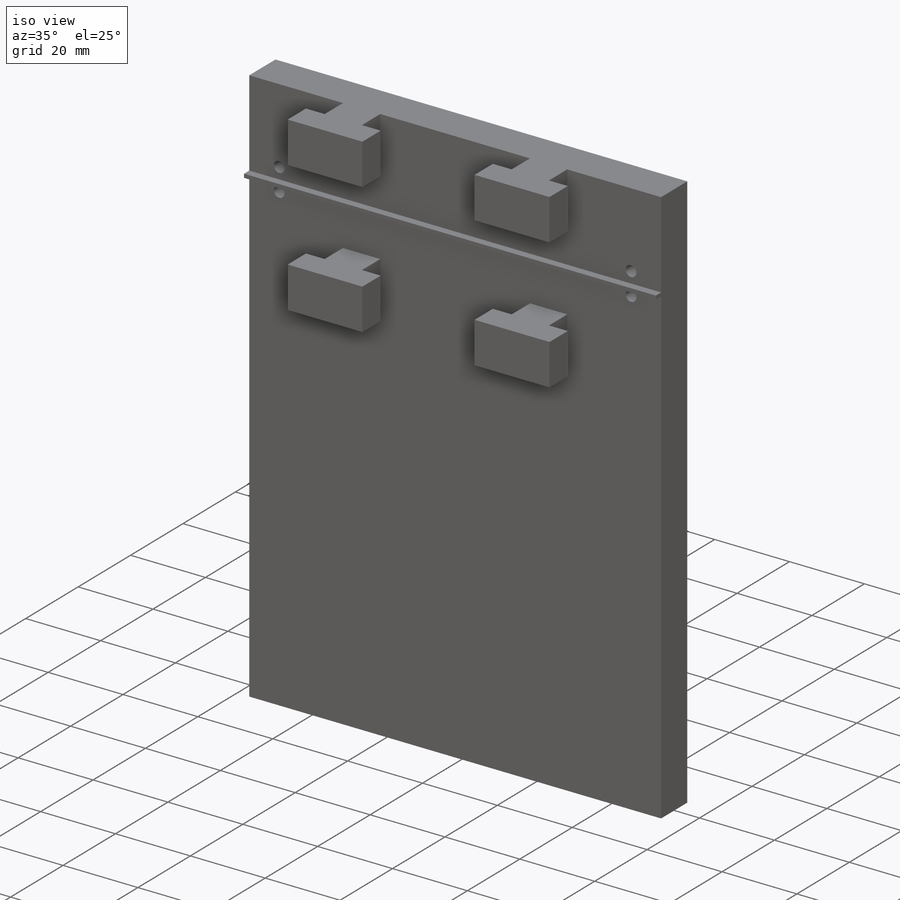
[diagram: iso view]
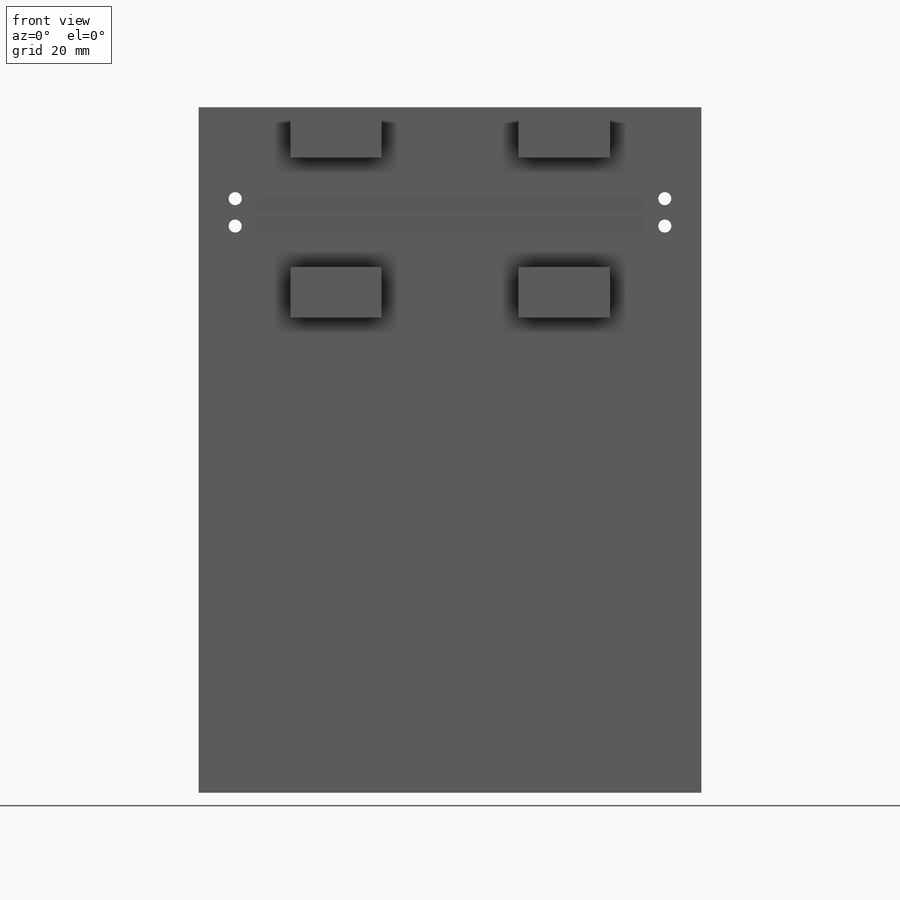
[diagram: front view]
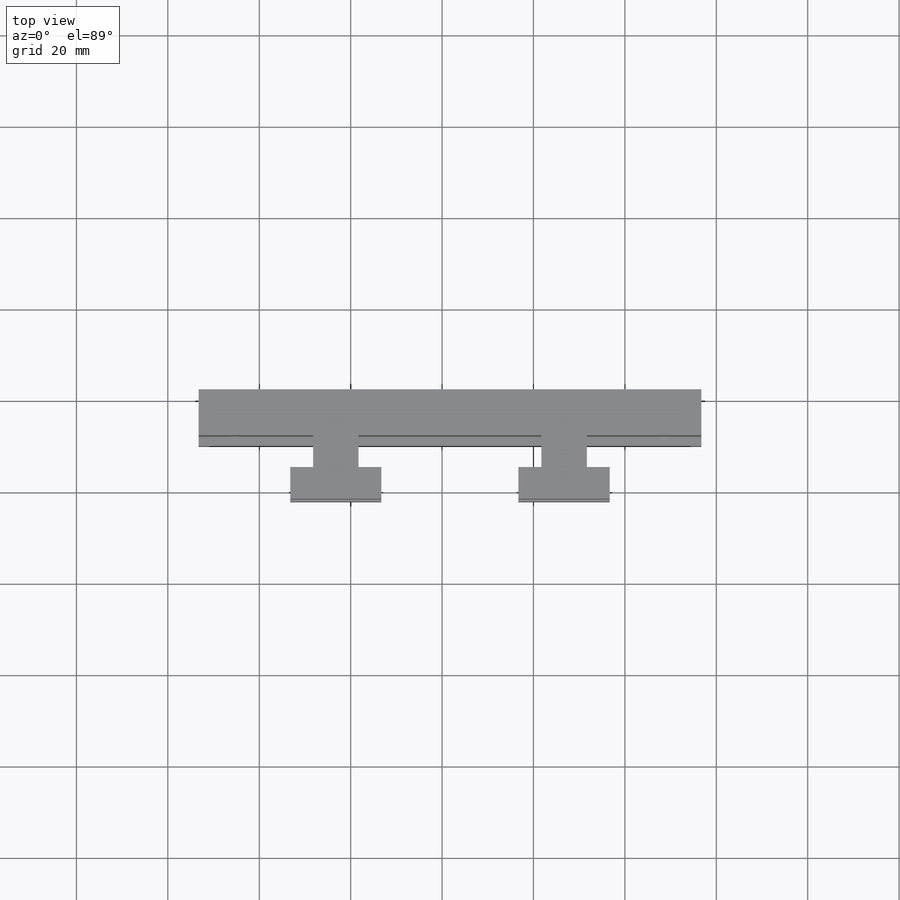
[diagram: top view]
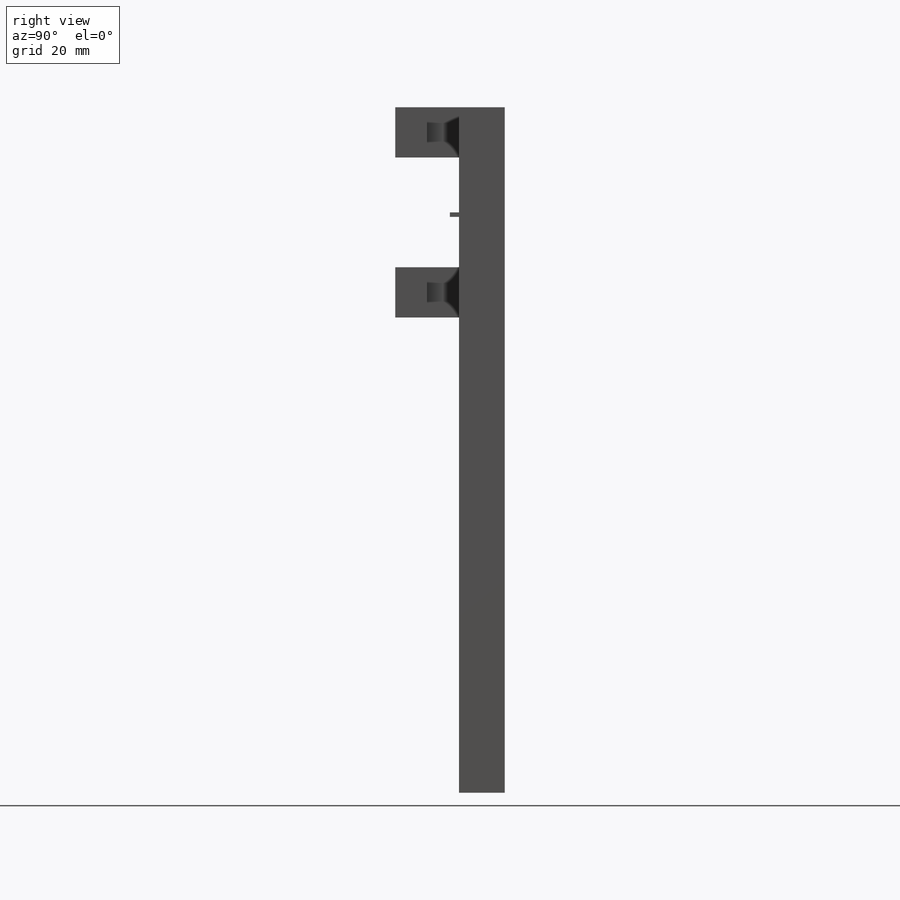
[diagram: right view]
SOLIDWORKS PART (.sldprt)
format: sldprt  version: not decoded by parser v0  size: 246,272 bytes
history: native  units: mm
features: sketch x5, extrude x4, material x1, cut_extrude x1, mirror x1 (+13 scaffold rows collapsed)
feature tree (25):
  scaffold x13  (default folders/planes/origin — collapsed)
  material  "Material <not specified>"
  sketch  "Sketch1"  dims[D1=110.0mm D2=150.0mm]
  extrude  "Boss-Extrude1"  Depth=10mm
  sketch  "Sketch2"  dims[D1=25.04mm D2=9.95mm D3=0.0mm D4=11.0mm D5=40.0mm D6=11.0mm D7=9.95mm D8=0.0mm]
  extrude  "Boss-Extrude2"  Depth=7mm
  sketch  "Sketch3"  dims[D1=0.0mm D2=11.0mm D3=20.04mm D4=19.95mm D5=0.0mm D6=11.0mm D7=20.0mm D8=20.04mm]
  extrude  "Boss-Extrude3"  Depth=6.95mm
  sketch  "Sketch6"  dims[D3=2.85mm D4=2.85mm D1=8.0mm D2=8.0mm D5=26.0mm D6=26.0mm]
  cut_extrude  "Cut-Extrude1"  Depth=10mm
  sketch  "Sketch7"  dims[D1=0.0mm D2=0.0mm D3=1.0mm D4=23.0mm]
  extrude  "Boss-Extrude4"  Depth=2mm
  mirror  "Mirror1"
decode coverage: 10 of 11 modeling features carry decoded parameters
note: suppression state not decoded; provenance and decode notes live in map.json
